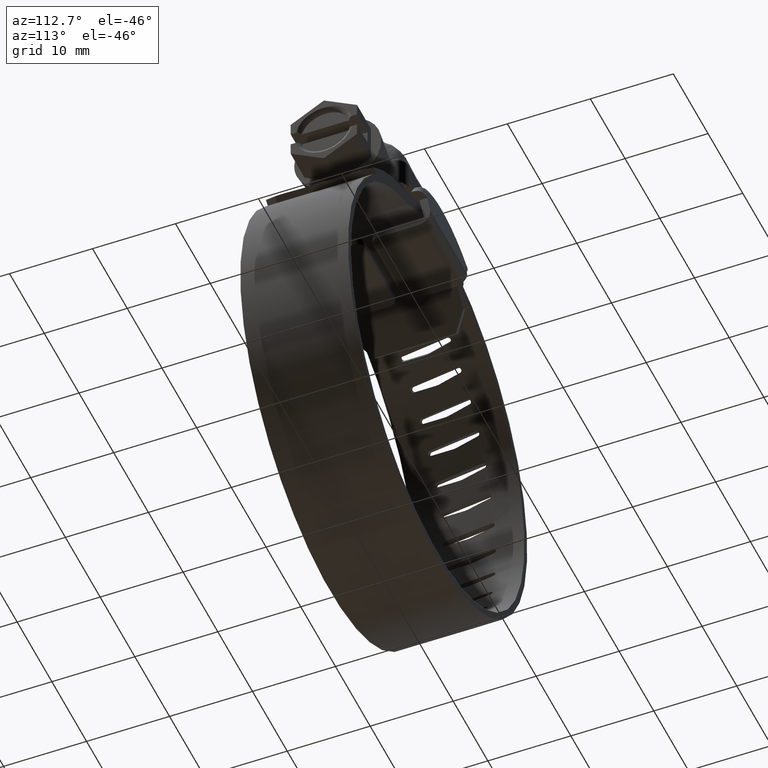
[diagram: clean part render]
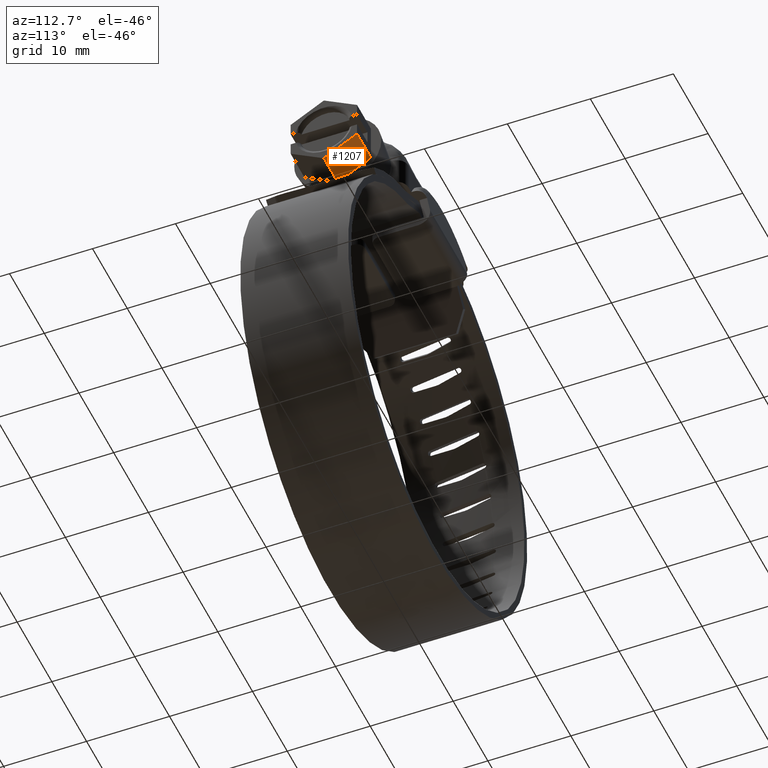
[diagram: same view with one face highlighted and labeled with its STEP entity id]
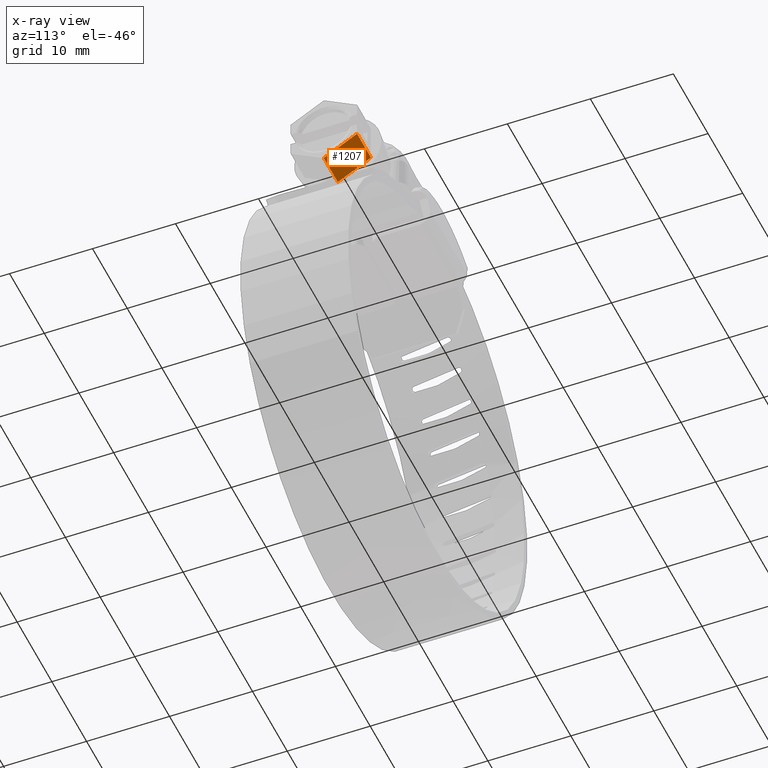
[diagram: x-ray of the same camera — body ghosted, the highlighted face saturated]
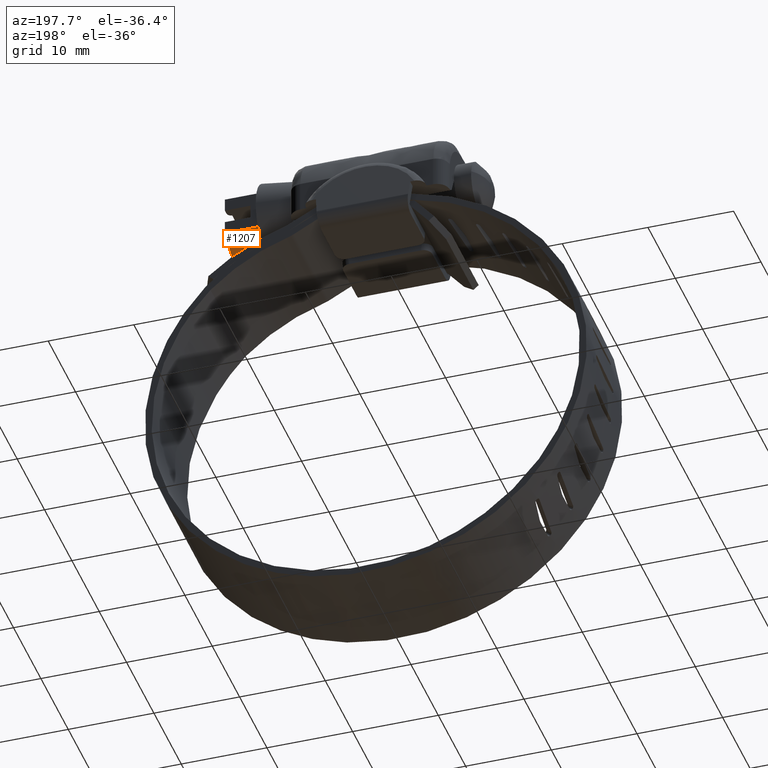
[diagram: same view with one face highlighted and labeled with its STEP entity id]
A machine part, auxiliary view. The second image highlights one B-rep face of the part: STEP entity #1207.
The next image is the same camera in x-ray: the body ghosted, the highlighted face saturated — about 1% of this face is hidden behind the body in this view.
A second angle (auxiliary view) of the same face is appended — the face is thin or edge-on in the first view.
In plain terms, the highlighted face is a freeform B-spline surface patch.
Its self-contained STEP definition (entity closure, byte-faithful):
#1151=CARTESIAN_POINT('',(17.250000000000000,0.0,11.208319000000101));
#1152=VERTEX_POINT('',#1151);
#1165=CARTESIAN_POINT('',(13.250000000000000,0.0,11.208319000000101));
#1166=VERTEX_POINT('',#1165);
#1172=CARTESIAN_POINT('',(13.250000000000000,0.0,11.208319000000101));
#1173=CARTESIAN_POINT('',(17.250000000000000,0.0,11.208319000000101));
#1174=QUASI_UNIFORM_CURVE('',1,(#1172,#1173),.UNSPECIFIED.,.F.,.U.);
#1175=EDGE_CURVE('',#1166,#1152,#1174,.T.);
#1180=CARTESIAN_POINT('',(13.050200007752780,-0.199800142443774,11.092964337810150));
#1181=CARTESIAN_POINT('',(13.050200007752780,4.199800106680941,13.633074641542381));
#1182=CARTESIAN_POINT('',(17.449800099535580,-0.199800142443774,11.092964337810150));
#1183=CARTESIAN_POINT('',(17.449800099535580,4.199800106680941,13.633074641542381));
#1184=B_SPLINE_SURFACE_WITH_KNOTS('',1,1,((#1180,#1182),(#1181,#1183)),.UNSPECIFIED.,.F.,.F.,.U.,(2,2),(2,2),(0.0,5.080220734104464),(0.0,4.399600091782808),.UNSPECIFIED.);
#1185=CARTESIAN_POINT('',(17.250000000000000,4.0,13.517720000000001));
#1186=VERTEX_POINT('',#1185);
#1187=CARTESIAN_POINT('',(17.250000000000000,0.0,11.208319000000101));
#1188=CARTESIAN_POINT('',(17.250000000000000,4.0,13.517720000000001));
#1189=QUASI_UNIFORM_CURVE('',1,(#1187,#1188),.UNSPECIFIED.,.F.,.U.);
#1190=EDGE_CURVE('',#1152,#1186,#1189,.T.);
#1191=ORIENTED_EDGE('',*,*,#1190,.F.);
#1192=ORIENTED_EDGE('',*,*,#1175,.F.);
#1193=CARTESIAN_POINT('',(13.250000000000000,4.0,13.517720000000001));
#1194=VERTEX_POINT('',#1193);
#1195=CARTESIAN_POINT('',(13.250000000000000,0.0,11.208319000000101));
#1196=CARTESIAN_POINT('',(13.250000000000000,4.0,13.517720000000001));
#1197=QUASI_UNIFORM_CURVE('',1,(#1195,#1196),.UNSPECIFIED.,.F.,.U.);
#1198=EDGE_CURVE('',#1166,#1194,#1197,.T.);
#1199=ORIENTED_EDGE('',*,*,#1198,.T.);
#1200=CARTESIAN_POINT('',(13.250000000000000,4.0,13.517720000000001));
#1201=CARTESIAN_POINT('',(17.250000000000000,4.0,13.517720000000001));
#1202=QUASI_UNIFORM_CURVE('',1,(#1200,#1201),.UNSPECIFIED.,.F.,.U.);
#1203=EDGE_CURVE('',#1194,#1186,#1202,.T.);
#1204=ORIENTED_EDGE('',*,*,#1203,.T.);
#1205=EDGE_LOOP('',(#1191,#1192,#1199,#1204));
#1206=FACE_OUTER_BOUND('',#1205,.T.);
#1207=ADVANCED_FACE('',(#1206),#1184,.T.);